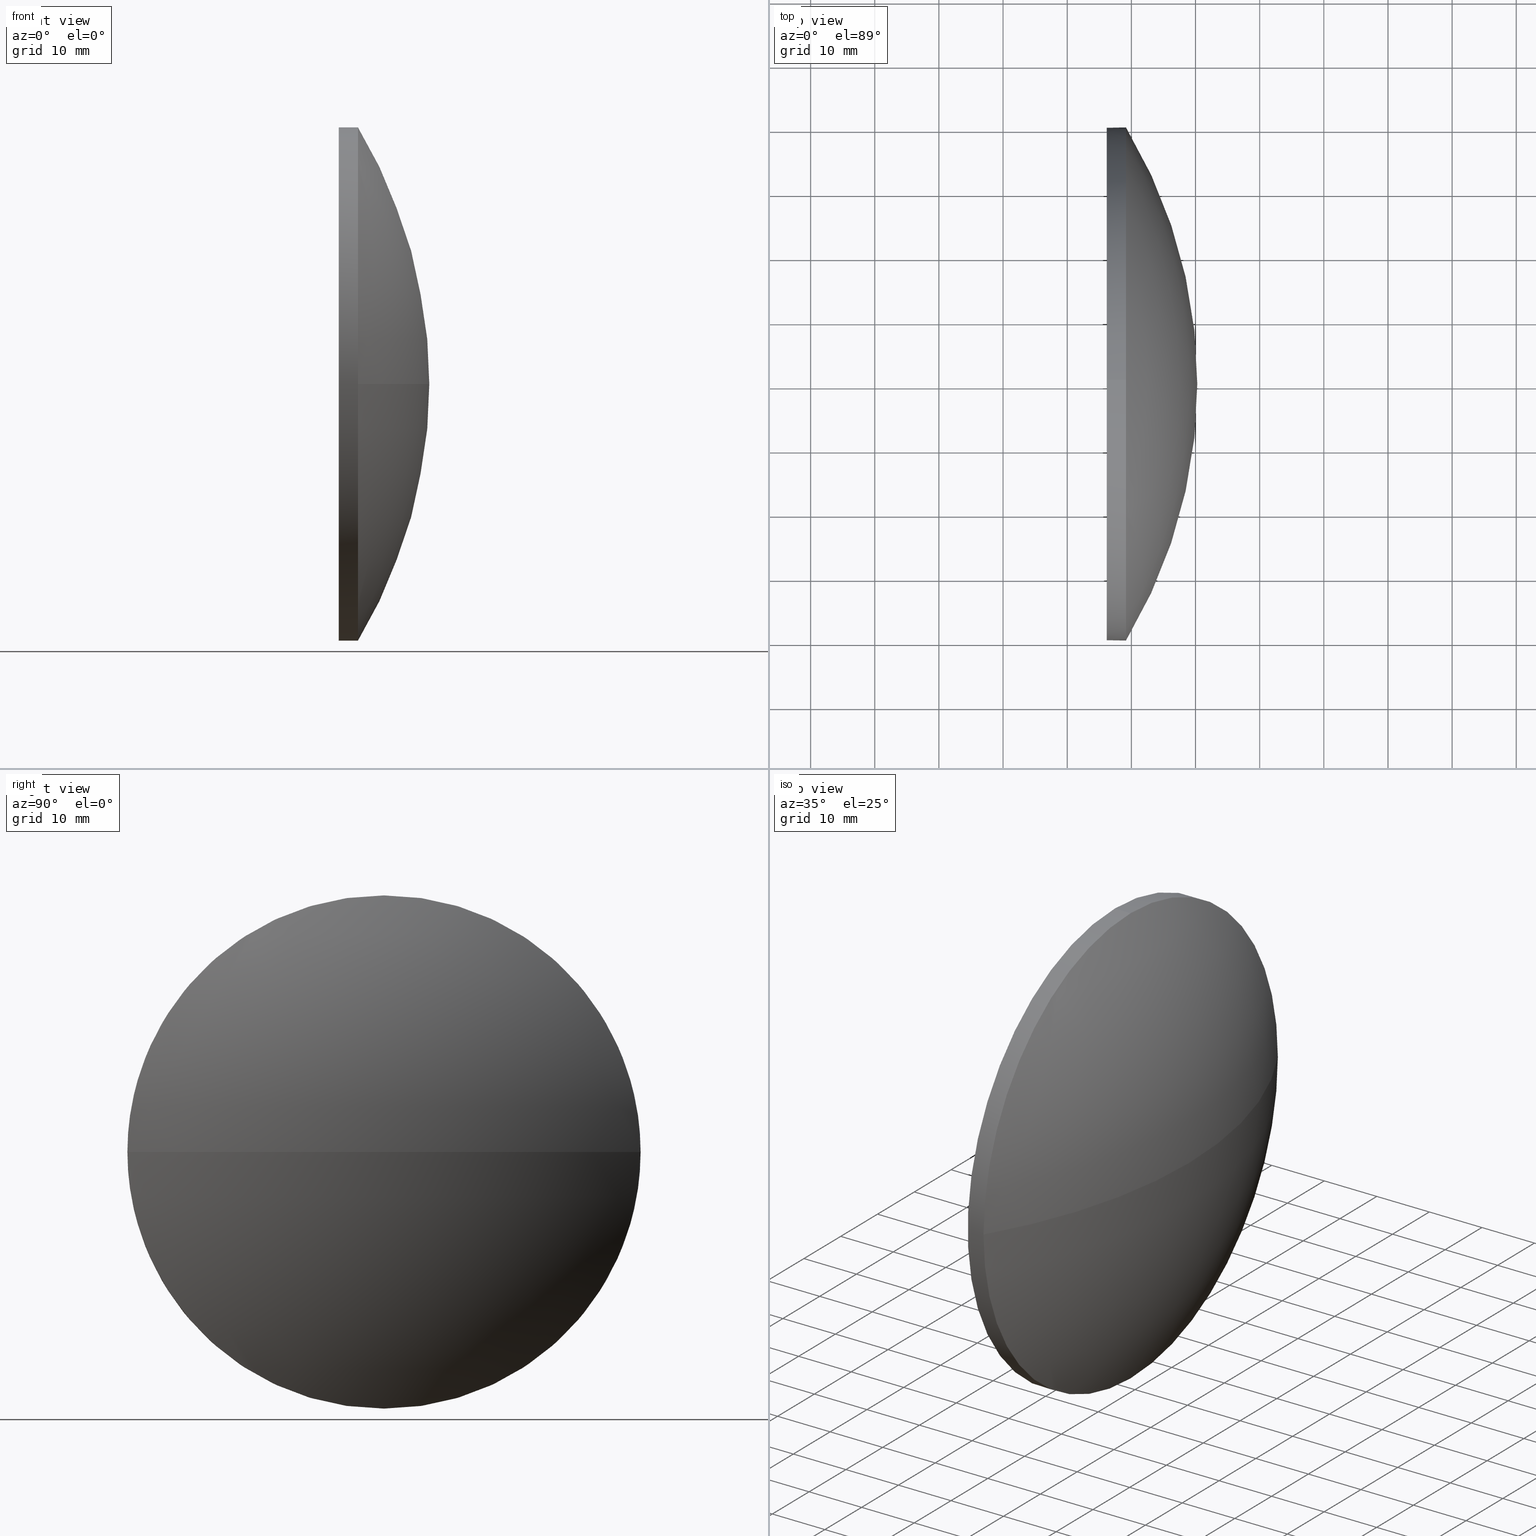
[diagram: canonical four-view strip — front | top / right | iso, engineering-drawing reading convention]
A machine part, canonical four-view strip (front | top / right | iso — engineering-drawing reading convention). The complete STEP part file that produces these views, byte-faithful:
ISO-10303-21;
HEADER;
FILE_DESCRIPTION (( 'STEP AP214' ),
    '1' );
FILE_NAME ('100078.STEP',
    '2019-05-07T05:53:14',
    ( '' ),
    ( '' ),
    'SwSTEP 2.0',
    'SolidWorks 2016',
    '' );
FILE_SCHEMA (( 'AUTOMOTIVE_DESIGN' ));
ENDSEC;

DATA;
#1 = CARTESIAN_POINT ( 'NONE',  ( 239.1561263384603500, 90.04189075992451300, -4.898587196589411400E-015 ) ) ;
#2 = CIRCLE ( 'NONE', #95, 40.00000000000000700 ) ;
#3 = EDGE_LOOP ( 'NONE', ( #125, #17, #144, #68, #64 ) ) ;
#4 = CARTESIAN_POINT ( 'NONE',  ( 172.7736802952949500, 130.0418907599245100, 0.0000000000000000000 ) ) ;
#5 = DIRECTION ( 'NONE',  ( -1.000000000000000000, -0.0000000000000000000, -0.0000000000000000000 ) ) ;
#6 = LINE ( 'NONE', #142, #156 ) ;
#7 = FILL_AREA_STYLE_COLOUR ( '', #129 ) ;
#8 = CARTESIAN_POINT ( 'NONE',  ( 0.0000000000000000000, 0.0000000000000000000, 0.0000000000000000000 ) ) ;
#9 = ORIENTED_EDGE ( 'NONE', *, *, #32, .T. ) ;
#10 =( NAMED_UNIT ( * ) SI_UNIT ( $, .STERADIAN. ) SOLID_ANGLE_UNIT ( ) );
#11 = APPLICATION_PROTOCOL_DEFINITION ( 'draft international standard', 'automotive_design', 1998, #58 ) ;
#12 = EDGE_CURVE ( 'NONE', #16, #167, #110, .T. ) ;
#13 = COLOUR_RGB ( '',1.000000000000000000, 1.000000000000000000, 1.000000000000000000 ) ;
#14 = DIRECTION ( 'NONE',  ( 0.0000000000000000000, 0.0000000000000000000, 1.000000000000000000 ) ) ;
#15 = SURFACE_STYLE_USAGE ( .BOTH. , #77 ) ;
#16 = VERTEX_POINT ( 'NONE', #92 ) ;
#17 = ORIENTED_EDGE ( 'NONE', *, *, #146, .T. ) ;
#18 = CARTESIAN_POINT ( 'NONE',  ( 239.1561263384603500, 130.0418907599245100, 0.0000000000000000000 ) ) ;
#19 = FACE_OUTER_BOUND ( 'NONE', #3, .T. ) ;
#20 = DIRECTION ( 'NONE',  ( -0.0000000000000000000, 0.0000000000000000000, 1.000000000000000000 ) ) ;
#21 = DIRECTION ( 'NONE',  ( -0.0000000000000000000, 0.0000000000000000000, -1.000000000000000000 ) ) ;
#22 = CLOSED_SHELL ( 'NONE', ( #165, #88, #40, #27, #114 ) ) ;
#23 = DIRECTION ( 'NONE',  ( 1.000000000000000000, 0.0000000000000000000, 0.0000000000000000000 ) ) ;
#24 = VERTEX_POINT ( 'NONE', #116 ) ;
#25 = UNCERTAINTY_MEASURE_WITH_UNIT (LENGTH_MEASURE( 1.000000000000000100E-005 ), #73, 'distance_accuracy_value', 'NONE');
#26 = AXIS2_PLACEMENT_3D ( 'NONE', #96, #21, #94 ) ;
#27 = ADVANCED_FACE ( 'NONE', ( #57 ), #65, .T. ) ;
#28 = CIRCLE ( 'NONE', #155, 77.50244604316542100 ) ;
#29 =( NAMED_UNIT ( * ) SI_UNIT ( $, .STERADIAN. ) SOLID_ANGLE_UNIT ( ) );
#30 = CARTESIAN_POINT ( 'NONE',  ( 172.7736802952949500, 130.0418907599245100, 0.0000000000000000000 ) ) ;
#31 = MANIFOLD_SOLID_BREP ( '��ת1', #22 ) ;
#32 = EDGE_CURVE ( 'NONE', #128, #120, #69, .T. ) ;
#33 = CARTESIAN_POINT ( 'NONE',  ( 239.1561263384603500, 130.0418907599245100, -40.00000000000000700 ) ) ;
#34 = AXIS2_PLACEMENT_3D ( 'NONE', #83, #5, #111 ) ;
#35 = PRESENTATION_STYLE_ASSIGNMENT (( #99 ) ) ;
#36 = FACE_OUTER_BOUND ( 'NONE', #178, .T. ) ;
#37 = PRODUCT_DEFINITION_FORMATION_WITH_SPECIFIED_SOURCE ( '�κ�', '', #39, .NOT_KNOWN. ) ;
#38 = UNCERTAINTY_MEASURE_WITH_UNIT (LENGTH_MEASURE( 1.000000000000000100E-005 ), #166, 'distance_accuracy_value', 'NONE');
#39 = PRODUCT ( '100078', '100078', '', ( #126 ) ) ;
#40 = ADVANCED_FACE ( 'NONE', ( #101 ), #62, .T. ) ;
#41 = AXIS2_PLACEMENT_3D ( 'NONE', #49, #176, #149 ) ;
#42 = PRODUCT_DEFINITION ( 'δ֪', '', #37, #53 ) ;
#43 = ORIENTED_EDGE ( 'NONE', *, *, #52, .F. ) ;
#44 = FACE_OUTER_BOUND ( 'NONE', #131, .T. ) ;
#45 = EDGE_CURVE ( 'NONE', #167, #16, #2, .T. ) ;
#46 = ADVANCED_BREP_SHAPE_REPRESENTATION ( '100078', ( #31, #86 ), #75 ) ;
#47 = DIRECTION ( 'NONE',  ( 0.0000000000000000000, 0.0000000000000000000, 1.000000000000000000 ) ) ;
#48 = DIRECTION ( 'NONE',  ( 0.0000000000000000000, 0.0000000000000000000, 1.000000000000000000 ) ) ;
#49 = CARTESIAN_POINT ( 'NONE',  ( 172.7736802952949500, 130.0418907599245100, 0.0000000000000000000 ) ) ;
#50 = CARTESIAN_POINT ( 'NONE',  ( 239.1561263384603500, 130.0418907599245100, 40.00000000000000700 ) ) ;
#51 = PRESENTATION_STYLE_ASSIGNMENT (( #15 ) ) ;
#52 = EDGE_CURVE ( 'NONE', #24, #120, #109, .T. ) ;
#53 = PRODUCT_DEFINITION_CONTEXT ( 'detailed design', #58, 'design' ) ;
#54 = DIRECTION ( 'NONE',  ( -1.000000000000000000, -0.0000000000000000000, -0.0000000000000000000 ) ) ;
#55 = AXIS2_PLACEMENT_3D ( 'NONE', #121, #152, #82 ) ;
#56 =( NAMED_UNIT ( * ) PLANE_ANGLE_UNIT ( ) SI_UNIT ( $, .RADIAN. ) );
#57 = FACE_OUTER_BOUND ( 'NONE', #93, .T. ) ;
#58 = APPLICATION_CONTEXT ( 'automotive_design' ) ;
#59 = MECHANICAL_DESIGN_GEOMETRIC_PRESENTATION_REPRESENTATION (  '', ( #157 ), #122 ) ;
#60 = ORIENTED_EDGE ( 'NONE', *, *, #130, .F. ) ;
#61 = APPLICATION_PROTOCOL_DEFINITION ( 'draft international standard', 'automotive_design', 1998, #102 ) ;
#62 = SPHERICAL_SURFACE ( 'NONE', #182, 77.50244604316542100 ) ;
#63 = DIRECTION ( 'NONE',  ( -1.000000000000000000, -0.0000000000000000000, -0.0000000000000000000 ) ) ;
#64 = ORIENTED_EDGE ( 'NONE', *, *, #164, .T. ) ;
#65 = CYLINDRICAL_SURFACE ( 'NONE', #78, 40.00000000000000700 ) ;
#66 = AXIS2_PLACEMENT_3D ( 'NONE', #70, #54, #71 ) ;
#67 = DIRECTION ( 'NONE',  ( 1.000000000000000000, 0.0000000000000000000, 0.0000000000000000000 ) ) ;
#68 = ORIENTED_EDGE ( 'NONE', *, *, #90, .F. ) ;
#69 = CIRCLE ( 'NONE', #148, 40.00000000000000700 ) ;
#70 = CARTESIAN_POINT ( 'NONE',  ( 239.1561263384603500, 130.0418907599245100, 0.0000000000000000000 ) ) ;
#71 = DIRECTION ( 'NONE',  ( 0.0000000000000000000, 0.0000000000000000000, 1.000000000000000000 ) ) ;
#72 = AXIS2_PLACEMENT_3D ( 'NONE', #170, #103, #14 ) ;
#73 =( LENGTH_UNIT ( ) NAMED_UNIT ( * ) SI_UNIT ( .MILLI., .METRE. ) );
#74 = VECTOR ( 'NONE', #161, 1000.000000000000000 ) ;
#75 =( GEOMETRIC_REPRESENTATION_CONTEXT ( 3 ) GLOBAL_UNCERTAINTY_ASSIGNED_CONTEXT ( ( #38 ) ) GLOBAL_UNIT_ASSIGNED_CONTEXT ( ( #166, #56, #181 ) ) REPRESENTATION_CONTEXT ( 'NONE', 'WORKASPACE' ) );
#76 = VERTEX_POINT ( 'NONE', #50 ) ;
#77 = SURFACE_SIDE_STYLE ('',( #132 ) ) ;
#78 = AXIS2_PLACEMENT_3D ( 'NONE', #186, #63, #159 ) ;
#79 =( NAMED_UNIT ( * ) PLANE_ANGLE_UNIT ( ) SI_UNIT ( $, .RADIAN. ) );
#80 = PRODUCT_DEFINITION_SHAPE ( 'NONE', 'NONE',  #42 ) ;
#81 = EDGE_CURVE ( 'NONE', #24, #173, #28, .T. ) ;
#82 = DIRECTION ( 'NONE',  ( 0.0000000000000000000, 0.0000000000000000000, -1.000000000000000000 ) ) ;
#83 = CARTESIAN_POINT ( 'NONE',  ( 239.1561263384603500, 130.0418907599245100, 0.0000000000000000000 ) ) ;
#84 = DIRECTION ( 'NONE',  ( 0.0000000000000000000, 0.0000000000000000000, 1.000000000000000000 ) ) ;
#85 = CARTESIAN_POINT ( 'NONE',  ( 217.3311486608872700, 130.0418907599245100, 0.0000000000000000000 ) ) ;
#86 = AXIS2_PLACEMENT_3D ( 'NONE', #8, #145, #23 ) ;
#87 = CARTESIAN_POINT ( 'NONE',  ( 239.1561263384603500, 130.0418907599245100, 0.0000000000000000000 ) ) ;
#88 = ADVANCED_FACE ( 'NONE', ( #36 ), #119, .T. ) ;
#89 = ORIENTED_EDGE ( 'NONE', *, *, #32, .F. ) ;
#90 = EDGE_CURVE ( 'NONE', #76, #16, #115, .T. ) ;
#91 = PRESENTATION_LAYER_ASSIGNMENT (  '', '', ( #168 ) ) ;
#92 = CARTESIAN_POINT ( 'NONE',  ( 236.1561263384603500, 130.0418907599245100, 40.00000000000000700 ) ) ;
#93 = EDGE_LOOP ( 'NONE', ( #147, #9, #171, #184, #162 ) ) ;
#94 = DIRECTION ( 'NONE',  ( 0.0000000000000000000, 1.000000000000000000, 0.0000000000000000000 ) ) ;
#95 = AXIS2_PLACEMENT_3D ( 'NONE', #174, #134, #47 ) ;
#96 = CARTESIAN_POINT ( 'NONE',  ( 172.7736802952949500, 130.0418907599245100, 0.0000000000000000000 ) ) ;
#97 = ORIENTED_EDGE ( 'NONE', *, *, #45, .T. ) ;
#98 = AXIS2_PLACEMENT_3D ( 'NONE', #87, #124, #84 ) ;
#99 = SURFACE_STYLE_USAGE ( .BOTH. , #100 ) ;
#100 = SURFACE_SIDE_STYLE ('',( #172 ) ) ;
#101 = FACE_OUTER_BOUND ( 'NONE', #163, .T. ) ;
#102 = APPLICATION_CONTEXT ( 'automotive_design' ) ;
#103 = DIRECTION ( 'NONE',  ( -1.000000000000000000, -0.0000000000000000000, -0.0000000000000000000 ) ) ;
#104 = ORIENTED_EDGE ( 'NONE', *, *, #81, .T. ) ;
#105 = FILL_AREA_STYLE ('',( #136 ) ) ;
#106 = ORIENTED_EDGE ( 'NONE', *, *, #81, .F. ) ;
#107 = DIRECTION ( 'NONE',  ( -1.000000000000000000, -0.0000000000000000000, -0.0000000000000000000 ) ) ;
#108 = PLANE ( 'NONE',  #55 ) ;
#109 = CIRCLE ( 'NONE', #41, 77.50244604316542100 ) ;
#110 = CIRCLE ( 'NONE', #72, 40.00000000000000700 ) ;
#111 = DIRECTION ( 'NONE',  ( 0.0000000000000000000, 0.0000000000000000000, 1.000000000000000000 ) ) ;
#112 = DIRECTION ( 'NONE',  ( -1.000000000000000000, -0.0000000000000000000, -0.0000000000000000000 ) ) ;
#113 = PRESENTATION_LAYER_ASSIGNMENT (  '', '', ( #157 ) ) ;
#114 = ADVANCED_FACE ( 'NONE', ( #44 ), #108, .F. ) ;
#115 = LINE ( 'NONE', #175, #74 ) ;
#116 = CARTESIAN_POINT ( 'NONE',  ( 250.2761263384603600, 130.0418907599245100, 0.0000000000000000000 ) ) ;
#117 =( LENGTH_UNIT ( ) NAMED_UNIT ( * ) SI_UNIT ( .MILLI., .METRE. ) );
#118 =( GEOMETRIC_REPRESENTATION_CONTEXT ( 3 ) GLOBAL_UNCERTAINTY_ASSIGNED_CONTEXT ( ( #180 ) ) GLOBAL_UNIT_ASSIGNED_CONTEXT ( ( #117, #79, #29 ) ) REPRESENTATION_CONTEXT ( 'NONE', 'WORKASPACE' ) );
#119 = SPHERICAL_SURFACE ( 'NONE', #26, 77.50244604316542100 ) ;
#120 = VERTEX_POINT ( 'NONE', #1 ) ;
#121 = CARTESIAN_POINT ( 'NONE',  ( 236.1561263384603500, 130.0418907599245100, 0.0000000000000000000 ) ) ;
#122 =( GEOMETRIC_REPRESENTATION_CONTEXT ( 3 ) GLOBAL_UNCERTAINTY_ASSIGNED_CONTEXT ( ( #25 ) ) GLOBAL_UNIT_ASSIGNED_CONTEXT ( ( #73, #154, #10 ) ) REPRESENTATION_CONTEXT ( 'NONE', 'WORKASPACE' ) );
#123 = CARTESIAN_POINT ( 'NONE',  ( 239.1561263384603500, 170.0418907599244800, 0.0000000000000000000 ) ) ;
#124 = DIRECTION ( 'NONE',  ( -1.000000000000000000, -0.0000000000000000000, -0.0000000000000000000 ) ) ;
#125 = ORIENTED_EDGE ( 'NONE', *, *, #135, .T. ) ;
#126 = PRODUCT_CONTEXT ( 'NONE', #102, 'mechanical' ) ;
#127 = ORIENTED_EDGE ( 'NONE', *, *, #135, .F. ) ;
#128 = VERTEX_POINT ( 'NONE', #33 ) ;
#129 = COLOUR_RGB ( '',1.000000000000000000, 1.000000000000000000, 1.000000000000000000 ) ;
#130 = EDGE_CURVE ( 'NONE', #120, #76, #160, .T. ) ;
#131 = EDGE_LOOP ( 'NONE', ( #143, #97 ) ) ;
#132 = SURFACE_STYLE_FILL_AREA ( #105 ) ;
#133 = DIRECTION ( 'NONE',  ( -0.0000000000000000000, 0.0000000000000000000, -1.000000000000000000 ) ) ;
#134 = DIRECTION ( 'NONE',  ( -1.000000000000000000, -0.0000000000000000000, -0.0000000000000000000 ) ) ;
#135 = EDGE_CURVE ( 'NONE', #173, #128, #185, .T. ) ;
#136 = FILL_AREA_STYLE_COLOUR ( '', #13 ) ;
#137 = ORIENTED_EDGE ( 'NONE', *, *, #52, .T. ) ;
#138 = ORIENTED_EDGE ( 'NONE', *, *, #164, .F. ) ;
#139 = MECHANICAL_DESIGN_GEOMETRIC_PRESENTATION_REPRESENTATION (  '', ( #168 ), #118 ) ;
#140 = PRODUCT_RELATED_PRODUCT_CATEGORY ( 'part', '', ( #39 ) ) ;
#141 = DIRECTION ( 'NONE',  ( -1.000000000000000000, -0.0000000000000000000, -0.0000000000000000000 ) ) ;
#142 = CARTESIAN_POINT ( 'NONE',  ( 217.3311486608872700, 130.0418907599245100, -40.00000000000000700 ) ) ;
#143 = ORIENTED_EDGE ( 'NONE', *, *, #12, .T. ) ;
#144 = ORIENTED_EDGE ( 'NONE', *, *, #12, .F. ) ;
#145 = DIRECTION ( 'NONE',  ( 0.0000000000000000000, 0.0000000000000000000, 1.000000000000000000 ) ) ;
#146 = EDGE_CURVE ( 'NONE', #128, #167, #6, .T. ) ;
#147 = ORIENTED_EDGE ( 'NONE', *, *, #146, .F. ) ;
#148 = AXIS2_PLACEMENT_3D ( 'NONE', #18, #107, #48 ) ;
#149 = DIRECTION ( 'NONE',  ( 0.0000000000000000000, 1.000000000000000000, 1.224646799147353200E-016 ) ) ;
#150 = AXIS2_PLACEMENT_3D ( 'NONE', #85, #141, #153 ) ;
#151 = SHAPE_DEFINITION_REPRESENTATION ( #80, #46 ) ;
#152 = DIRECTION ( 'NONE',  ( 1.000000000000000000, 0.0000000000000000000, 0.0000000000000000000 ) ) ;
#153 = DIRECTION ( 'NONE',  ( 0.0000000000000000000, 0.0000000000000000000, 1.000000000000000000 ) ) ;
#154 =( NAMED_UNIT ( * ) PLANE_ANGLE_UNIT ( ) SI_UNIT ( $, .RADIAN. ) );
#155 = AXIS2_PLACEMENT_3D ( 'NONE', #4, #20, #67 ) ;
#156 = VECTOR ( 'NONE', #112, 1000.000000000000000 ) ;
#157 = STYLED_ITEM ( 'NONE', ( #35 ), #46 ) ;
#158 = DIRECTION ( 'NONE',  ( 0.0000000000000000000, 1.000000000000000000, 0.0000000000000000000 ) ) ;
#159 = DIRECTION ( 'NONE',  ( 0.0000000000000000000, 0.0000000000000000000, 1.000000000000000000 ) ) ;
#160 = CIRCLE ( 'NONE', #34, 40.00000000000000700 ) ;
#161 = DIRECTION ( 'NONE',  ( -1.000000000000000000, -0.0000000000000000000, -0.0000000000000000000 ) ) ;
#162 = ORIENTED_EDGE ( 'NONE', *, *, #45, .F. ) ;
#163 = EDGE_LOOP ( 'NONE', ( #43, #104, #138, #60 ) ) ;
#164 = EDGE_CURVE ( 'NONE', #76, #173, #177, .T. ) ;
#165 = ADVANCED_FACE ( 'NONE', ( #19 ), #169, .T. ) ;
#166 =( LENGTH_UNIT ( ) NAMED_UNIT ( * ) SI_UNIT ( .MILLI., .METRE. ) );
#167 = VERTEX_POINT ( 'NONE', #179 ) ;
#168 = STYLED_ITEM ( 'NONE', ( #51 ), #31 ) ;
#169 = CYLINDRICAL_SURFACE ( 'NONE', #150, 40.00000000000000700 ) ;
#170 = CARTESIAN_POINT ( 'NONE',  ( 236.1561263384603500, 130.0418907599245100, 0.0000000000000000000 ) ) ;
#171 = ORIENTED_EDGE ( 'NONE', *, *, #130, .T. ) ;
#172 = SURFACE_STYLE_FILL_AREA ( #183 ) ;
#173 = VERTEX_POINT ( 'NONE', #123 ) ;
#174 = CARTESIAN_POINT ( 'NONE',  ( 236.1561263384603500, 130.0418907599245100, 0.0000000000000000000 ) ) ;
#175 = CARTESIAN_POINT ( 'NONE',  ( 217.3311486608872700, 130.0418907599245100, 40.00000000000000700 ) ) ;
#176 = DIRECTION ( 'NONE',  ( 0.0000000000000000000, 1.224646799147353200E-016, -1.000000000000000000 ) ) ;
#177 = CIRCLE ( 'NONE', #66, 40.00000000000000700 ) ;
#178 = EDGE_LOOP ( 'NONE', ( #106, #137, #89, #127 ) ) ;
#179 = CARTESIAN_POINT ( 'NONE',  ( 236.1561263384603500, 130.0418907599245100, -40.00000000000000700 ) ) ;
#180 = UNCERTAINTY_MEASURE_WITH_UNIT (LENGTH_MEASURE( 1.000000000000000100E-005 ), #117, 'distance_accuracy_value', 'NONE');
#181 =( NAMED_UNIT ( * ) SI_UNIT ( $, .STERADIAN. ) SOLID_ANGLE_UNIT ( ) );
#182 = AXIS2_PLACEMENT_3D ( 'NONE', #30, #133, #158 ) ;
#183 = FILL_AREA_STYLE ('',( #7 ) ) ;
#184 = ORIENTED_EDGE ( 'NONE', *, *, #90, .T. ) ;
#185 = CIRCLE ( 'NONE', #98, 40.00000000000000700 ) ;
#186 = CARTESIAN_POINT ( 'NONE',  ( 217.3311486608872700, 130.0418907599245100, 0.0000000000000000000 ) ) ;
ENDSEC;
END-ISO-10303-21;
